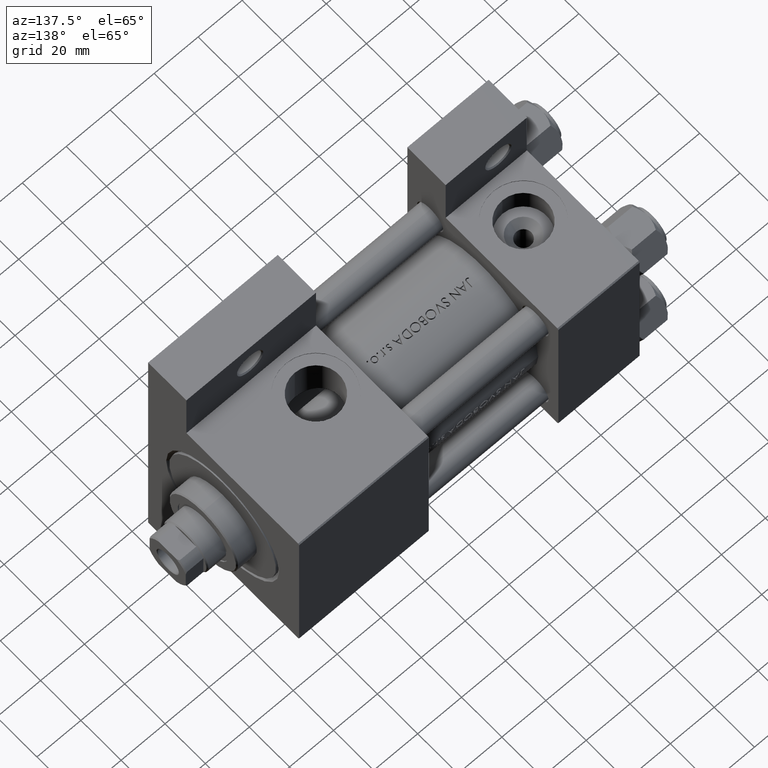
[diagram: clean part render]
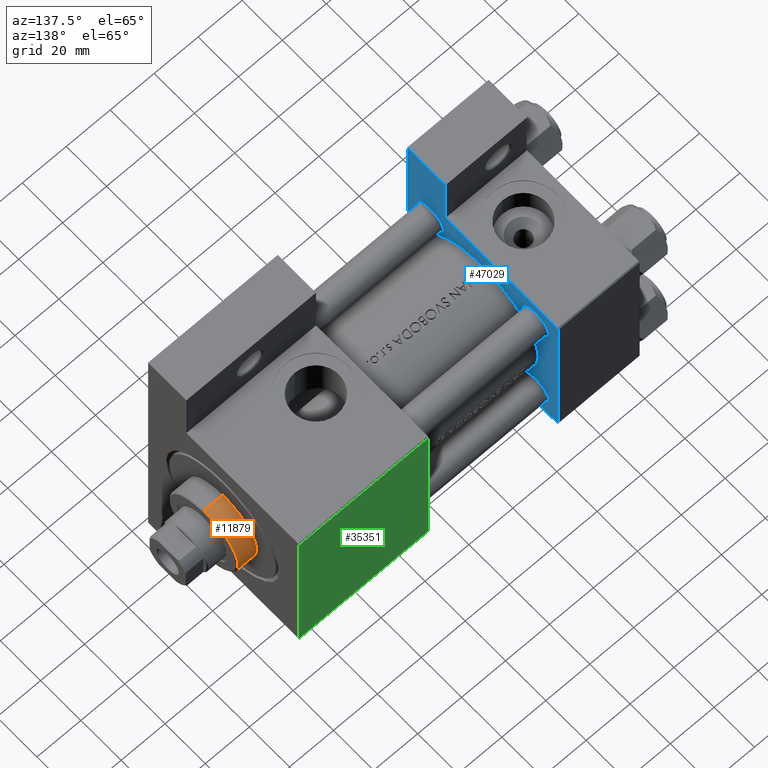
[diagram: same view with three faces highlighted in distinct colors, each labeled with its STEP entity id]
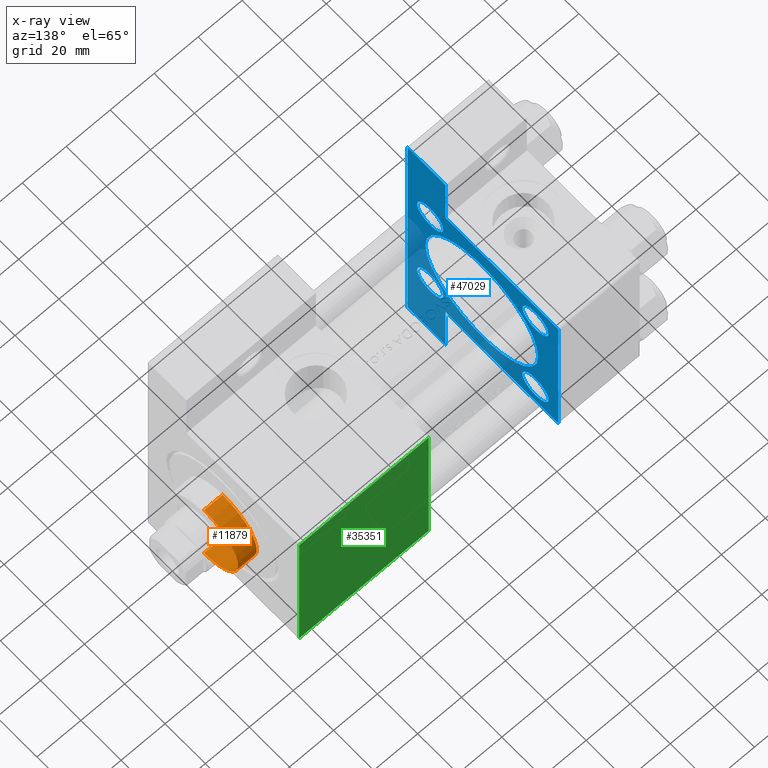
[diagram: x-ray of the same camera — body ghosted, the three highlighted faces saturated]
A machine part, auxiliary view with three faces highlighted in distinct colors.
The next image is the same camera in x-ray (body ghosted, the three faces saturated) — at least one of them is partly hidden behind the body in this view.
Their STEP definitions:

[orange] entity #11879 — the highlighted cylindrical surface (partial cylindrical patch) has radius 17 mm, axis along (-1, -0, 0).
#2770 = DIRECTION ( 'NONE',  ( 1.000000000000000000, 0.000000000000000000, 0.000000000000000000 ) ) ;
#4389 = VERTEX_POINT ( 'NONE', #4595 ) ;
#4595 = CARTESIAN_POINT ( 'NONE',  ( 17.00000000000000000, 2.081899558550500280E-15, 28.69999999999999929 ) ) ;
#5450 = CIRCLE ( 'NONE', #43644, 17.00000000000000000 ) ;
#6272 = DIRECTION ( 'NONE',  ( 0.000000000000000000, 0.000000000000000000, 1.000000000000000000 ) ) ;
#9220 = EDGE_CURVE ( 'NONE', #4389, #26692, #11006, .T. ) ;
#9476 = DIRECTION ( 'NONE',  ( 1.000000000000000000, 0.000000000000000000, 0.000000000000000000 ) ) ;
#10389 = EDGE_CURVE ( 'NONE', #24173, #17211, #5450, .T. ) ;
#11006 = CIRCLE ( 'NONE', #14987, 17.00000000000000000 ) ;
#11879 = ADVANCED_FACE ( 'NONE', ( #13752 ), #25686, .T. ) ;
#12368 = DIRECTION ( 'NONE',  ( -0.000000000000000000, -0.000000000000000000, -1.000000000000000000 ) ) ;
#13752 = FACE_OUTER_BOUND ( 'NONE', #48008, .T. ) ;
#14973 = CARTESIAN_POINT ( 'NONE',  ( 0.000000000000000000, 0.000000000000000000, 28.69999999999999929 ) ) ;
#14987 = AXIS2_PLACEMENT_3D ( 'NONE', #14973, #6272, #2770 ) ;
#15788 = CARTESIAN_POINT ( 'NONE',  ( -17.00000000000000000, 0.000000000000000000, 28.69999999999999929 ) ) ;
#17211 = VERTEX_POINT ( 'NONE', #43966 ) ;
#20065 = LINE ( 'NONE', #46958, #34227 ) ;
#24173 = VERTEX_POINT ( 'NONE', #43969 ) ;
#25053 = DIRECTION ( 'NONE',  ( -0.000000000000000000, -0.000000000000000000, -1.000000000000000000 ) ) ;
#25686 = CYLINDRICAL_SURFACE ( 'NONE', #27920, 17.00000000000000000 ) ;
#26692 = VERTEX_POINT ( 'NONE', #15788 ) ;
#27920 = AXIS2_PLACEMENT_3D ( 'NONE', #28438, #32913, #32421 ) ;
#28273 = ORIENTED_EDGE ( 'NONE', *, *, #9220, .T. ) ;
#28438 = CARTESIAN_POINT ( 'NONE',  ( 0.000000000000000000, 0.000000000000000000, 37.69999999999999574 ) ) ;
#28788 = LINE ( 'NONE', #43985, #39917 ) ;
#32421 = DIRECTION ( 'NONE',  ( -1.000000000000000000, 0.000000000000000000, 0.000000000000000000 ) ) ;
#32623 = DIRECTION ( 'NONE',  ( 0.000000000000000000, 0.000000000000000000, -1.000000000000000000 ) ) ;
#32913 = DIRECTION ( 'NONE',  ( -0.000000000000000000, -0.000000000000000000, -1.000000000000000000 ) ) ;
#33005 = EDGE_CURVE ( 'NONE', #24173, #26692, #20065, .T. ) ;
#34227 = VECTOR ( 'NONE', #12368, 1000.000000000000000 ) ;
#36054 = EDGE_CURVE ( 'NONE', #17211, #4389, #28788, .T. ) ;
#39917 = VECTOR ( 'NONE', #25053, 1000.000000000000000 ) ;
#43590 = CARTESIAN_POINT ( 'NONE',  ( 0.000000000000000000, 0.000000000000000000, 37.19999999999999574 ) ) ;
#43644 = AXIS2_PLACEMENT_3D ( 'NONE', #43590, #32623, #9476 ) ;
#43966 = CARTESIAN_POINT ( 'NONE',  ( 17.00000000000000000, 2.081899558550500280E-15, 37.19999999999999574 ) ) ;
#43969 = CARTESIAN_POINT ( 'NONE',  ( -17.00000000000000000, 0.000000000000000000, 37.19999999999999574 ) ) ;
#43985 = CARTESIAN_POINT ( 'NONE',  ( 17.00000000000000000, 2.081899558550500280E-15, 37.69999999999999574 ) ) ;
#46413 = ORIENTED_EDGE ( 'NONE', *, *, #33005, .F. ) ;
#46525 = ORIENTED_EDGE ( 'NONE', *, *, #36054, .T. ) ;
#46958 = CARTESIAN_POINT ( 'NONE',  ( -17.00000000000000000, 0.000000000000000000, 37.69999999999999574 ) ) ;
#48008 = EDGE_LOOP ( 'NONE', ( #48577, #46525, #28273, #46413 ) ) ;
#48577 = ORIENTED_EDGE ( 'NONE', *, *, #10389, .T. ) ;

[blue] entity #47029 — the highlighted planar face has unit normal (-1, 0, -0).
#259 = CARTESIAN_POINT ( 'NONE',  ( 37.00000000000000000, 26.14999999999999858, -32.64999999999997726 ) ) ;
#282 = VECTOR ( 'NONE', #28642, 1000.000000000000114 ) ;
#425 = DIRECTION ( 'NONE',  ( 0.000000000000000000, 0.000000000000000000, 1.000000000000000000 ) ) ;
#1102 = DIRECTION ( 'NONE',  ( 1.000000000000000000, -0.000000000000000000, 0.000000000000000000 ) ) ;
#1947 = DIRECTION ( 'NONE',  ( -1.000000000000000000, 0.000000000000000000, -0.000000000000000000 ) ) ;
#1950 = ORIENTED_EDGE ( 'NONE', *, *, #42914, .T. ) ;
#2206 = DIRECTION ( 'NONE',  ( 0.000000000000000000, 0.000000000000000000, 1.000000000000000000 ) ) ;
#2978 = EDGE_CURVE ( 'NONE', #42439, #44242, #5356, .T. ) ;
#3491 = VERTEX_POINT ( 'NONE', #7586 ) ;
#3768 = ORIENTED_EDGE ( 'NONE', *, *, #26421, .T. ) ;
#3894 = VERTEX_POINT ( 'NONE', #44531 ) ;
#3914 = DIRECTION ( 'NONE',  ( -1.000000000000000000, 0.000000000000000000, -0.000000000000000000 ) ) ;
#4043 = EDGE_CURVE ( 'NONE', #22329, #3894, #12591, .T. ) ;
#4069 = ORIENTED_EDGE ( 'NONE', *, *, #25712, .T. ) ;
#4791 = CARTESIAN_POINT ( 'NONE',  ( 37.00000000000000000, -37.50000000000000000, -18.50000000000000355 ) ) ;
#4912 = VECTOR ( 'NONE', #24233, 1000.000000000000000 ) ;
#5356 = CIRCLE ( 'NONE', #6177, 6.500000000000002665 ) ;
#5698 = CARTESIAN_POINT ( 'NONE',  ( 37.00000000000000000, -26.14999999999999147, 26.15000000000000924 ) ) ;
#5871 = CARTESIAN_POINT ( 'NONE',  ( 37.00000000000000000, 26.14999999999999858, 19.65000000000002345 ) ) ;
#5913 = CARTESIAN_POINT ( 'NONE',  ( 37.00000000000000000, -26.14999999999999147, -19.65000000000000924 ) ) ;
#6177 = AXIS2_PLACEMENT_3D ( 'NONE', #27384, #1947, #16907 ) ;
#6401 = FACE_BOUND ( 'NONE', #28547, .T. ) ;
#6999 = CARTESIAN_POINT ( 'NONE',  ( 37.00000000000000000, -37.50000000000000711, 37.49999999999999289 ) ) ;
#7511 = VERTEX_POINT ( 'NONE', #35739 ) ;
#7586 = CARTESIAN_POINT ( 'NONE',  ( 37.00000000000000000, 26.14999999999999858, 32.64999999999998437 ) ) ;
#7695 = ORIENTED_EDGE ( 'NONE', *, *, #24674, .F. ) ;
#8140 = DIRECTION ( 'NONE',  ( -1.000000000000000000, 0.000000000000000000, -0.000000000000000000 ) ) ;
#8824 = DIRECTION ( 'NONE',  ( 0.000000000000000000, 0.000000000000000000, 1.000000000000000000 ) ) ;
#9066 = ORIENTED_EDGE ( 'NONE', *, *, #4043, .T. ) ;
#9293 = DIRECTION ( 'NONE',  ( 0.000000000000000000, 0.000000000000000000, 1.000000000000000000 ) ) ;
#9655 = DIRECTION ( 'NONE',  ( 0.000000000000000000, 0.000000000000000000, 1.000000000000000000 ) ) ;
#9660 = FACE_BOUND ( 'NONE', #20747, .T. ) ;
#10833 = ORIENTED_EDGE ( 'NONE', *, *, #13731, .T. ) ;
#12098 = VERTEX_POINT ( 'NONE', #259 ) ;
#12297 = LINE ( 'NONE', #27469, #13422 ) ;
#12591 = CIRCLE ( 'NONE', #37979, 6.500000000000008882 ) ;
#12659 = EDGE_CURVE ( 'NONE', #43417, #21236, #48352, .T. ) ;
#12753 = ORIENTED_EDGE ( 'NONE', *, *, #44104, .F. ) ;
#12817 = CARTESIAN_POINT ( 'NONE',  ( 37.00000000000000000, 37.49999999999999289, 37.00000000000000000 ) ) ;
#13422 = VECTOR ( 'NONE', #31695, 1000.000000000000000 ) ;
#13475 = CARTESIAN_POINT ( 'NONE',  ( 37.00000000000000000, -37.50000000000000711, 36.99999999999999289 ) ) ;
#13485 = CARTESIAN_POINT ( 'NONE',  ( 37.00000000000000000, -63.50000000000000000, -18.50000000000000355 ) ) ;
#13731 = EDGE_CURVE ( 'NONE', #29579, #43417, #48543, .T. ) ;
#13970 = VERTEX_POINT ( 'NONE', #34655 ) ;
#14075 = VERTEX_POINT ( 'NONE', #13485 ) ;
#14259 = DIRECTION ( 'NONE',  ( 0.000000000000000000, 9.251858538542971581E-17, -1.000000000000000000 ) ) ;
#14420 = DIRECTION ( 'NONE',  ( 0.000000000000000000, 0.000000000000000000, 1.000000000000000000 ) ) ;
#15017 = EDGE_LOOP ( 'NONE', ( #15847, #38360 ) ) ;
#15217 = DIRECTION ( 'NONE',  ( -1.000000000000000000, 0.000000000000000000, -0.000000000000000000 ) ) ;
#15231 = VECTOR ( 'NONE', #37575, 1000.000000000000000 ) ;
#15360 = AXIS2_PLACEMENT_3D ( 'NONE', #29111, #48520, #14420 ) ;
#15847 = ORIENTED_EDGE ( 'NONE', *, *, #22581, .T. ) ;
#16787 = CARTESIAN_POINT ( 'NONE',  ( 37.00000000000000000, -63.50000000000000000, -37.49999999999999289 ) ) ;
#16801 = CARTESIAN_POINT ( 'NONE',  ( 37.00000000000000000, 37.49999999999999289, -37.50000000000000000 ) ) ;
#16907 = DIRECTION ( 'NONE',  ( 0.000000000000000000, 0.000000000000000000, 1.000000000000000000 ) ) ;
#17299 = LINE ( 'NONE', #47935, #47791 ) ;
#17791 = ORIENTED_EDGE ( 'NONE', *, *, #43591, .T. ) ;
#17842 = EDGE_LOOP ( 'NONE', ( #47976, #25292 ) ) ;
#17868 = PLANE ( 'NONE',  #44771 ) ;
#18097 = AXIS2_PLACEMENT_3D ( 'NONE', #26418, #15217, #30409 ) ;
#18256 = CIRCLE ( 'NONE', #26183, 6.500000000000008882 ) ;
#18335 = CIRCLE ( 'NONE', #24683, 6.499999999999974243 ) ;
#18427 = AXIS2_PLACEMENT_3D ( 'NONE', #43410, #47882, #9293 ) ;
#19364 = CARTESIAN_POINT ( 'NONE',  ( 37.00000000000000000, -26.14999999999999147, 26.15000000000000924 ) ) ;
#19419 = VERTEX_POINT ( 'NONE', #16787 ) ;
#19827 = DIRECTION ( 'NONE',  ( 0.000000000000000000, 0.000000000000000000, 1.000000000000000000 ) ) ;
#19832 = CARTESIAN_POINT ( 'NONE',  ( 37.00000000000001421, 63.50000000000001421, -18.50000000000000355 ) ) ;
#19991 = CARTESIAN_POINT ( 'NONE',  ( 37.00000000000000000, -26.14999999999999147, 32.65000000000001990 ) ) ;
#20028 = VECTOR ( 'NONE', #31500, 1000.000000000000000 ) ;
#20575 = CIRCLE ( 'NONE', #30131, 6.499999999999974243 ) ;
#20747 = EDGE_LOOP ( 'NONE', ( #4069, #21051 ) ) ;
#21051 = ORIENTED_EDGE ( 'NONE', *, *, #25009, .T. ) ;
#21236 = VERTEX_POINT ( 'NONE', #4791 ) ;
#21348 = DIRECTION ( 'NONE',  ( -0.000000000000000000, 0.000000000000000000, 1.000000000000000000 ) ) ;
#22195 = CARTESIAN_POINT ( 'NONE',  ( 37.00000000000000000, 26.14999999999999858, 26.15000000000000213 ) ) ;
#22329 = VERTEX_POINT ( 'NONE', #19991 ) ;
#22581 = EDGE_CURVE ( 'NONE', #12098, #22949, #39563, .T. ) ;
#22776 = LINE ( 'NONE', #37980, #20028 ) ;
#22813 = LINE ( 'NONE', #19832, #44406 ) ;
#22949 = VERTEX_POINT ( 'NONE', #31519 ) ;
#22975 = EDGE_LOOP ( 'NONE', ( #36360, #9066 ) ) ;
#23013 = ORIENTED_EDGE ( 'NONE', *, *, #45192, .F. ) ;
#23561 = DIRECTION ( 'NONE',  ( 2.668805347656626678E-16, 1.000000000000000000, 0.000000000000000000 ) ) ;
#23705 = VERTEX_POINT ( 'NONE', #41317 ) ;
#24129 = EDGE_CURVE ( 'NONE', #7511, #34719, #22813, .T. ) ;
#24170 = CARTESIAN_POINT ( 'NONE',  ( 37.00000000000000000, -37.50000000000000711, 36.99999999999999289 ) ) ;
#24190 = VERTEX_POINT ( 'NONE', #5871 ) ;
#24233 = DIRECTION ( 'NONE',  ( -0.000000000000000000, 1.000000000000000000, 0.000000000000000000 ) ) ;
#24480 = LINE ( 'NONE', #39675, #4912 ) ;
#24674 = EDGE_CURVE ( 'NONE', #47860, #7511, #12297, .T. ) ;
#24683 = AXIS2_PLACEMENT_3D ( 'NONE', #41991, #8140, #19827 ) ;
#24757 = DIRECTION ( 'NONE',  ( 0.000000000000000000, -1.000000000000000000, -9.251858538542972814E-17 ) ) ;
#24842 = CARTESIAN_POINT ( 'NONE',  ( 37.00000000000000000, 0.000000000000000000, 0.000000000000000000 ) ) ;
#25009 = EDGE_CURVE ( 'NONE', #3491, #24190, #30900, .T. ) ;
#25292 = ORIENTED_EDGE ( 'NONE', *, *, #2978, .T. ) ;
#25694 = CIRCLE ( 'NONE', #31283, 28.00000000000000000 ) ;
#25712 = EDGE_CURVE ( 'NONE', #24190, #3491, #20575, .T. ) ;
#26183 = AXIS2_PLACEMENT_3D ( 'NONE', #5698, #33080, #2206 ) ;
#26278 = ORIENTED_EDGE ( 'NONE', *, *, #12659, .T. ) ;
#26367 = CARTESIAN_POINT ( 'NONE',  ( 37.00000000000000000, -63.49999999999998579, 26.72167621838007889 ) ) ;
#26418 = CARTESIAN_POINT ( 'NONE',  ( 37.00000000000000000, 26.14999999999999858, -26.15000000000000213 ) ) ;
#26421 = EDGE_CURVE ( 'NONE', #13970, #29579, #33481, .T. ) ;
#27024 = VERTEX_POINT ( 'NONE', #30424 ) ;
#27384 = CARTESIAN_POINT ( 'NONE',  ( 37.00000000000000000, -26.14999999999999147, -26.15000000000000924 ) ) ;
#27469 = CARTESIAN_POINT ( 'NONE',  ( 37.00000000000000000, 37.49999999999999289, 37.50000000000000000 ) ) ;
#28547 = EDGE_LOOP ( 'NONE', ( #28990, #34699 ) ) ;
#28573 = CARTESIAN_POINT ( 'NONE',  ( 37.00000000000000000, 26.14999999999999858, 26.15000000000000213 ) ) ;
#28579 = FACE_BOUND ( 'NONE', #17842, .T. ) ;
#28642 = DIRECTION ( 'NONE',  ( -0.000000000000000000, -0.7071067811865474617, -0.7071067811865474617 ) ) ;
#28990 = ORIENTED_EDGE ( 'NONE', *, *, #38129, .F. ) ;
#29111 = CARTESIAN_POINT ( 'NONE',  ( 37.00000000000000000, 0.000000000000000000, -0.5000000000000004441 ) ) ;
#29579 = VERTEX_POINT ( 'NONE', #37936 ) ;
#30131 = AXIS2_PLACEMENT_3D ( 'NONE', #22195, #45606, #34147 ) ;
#30409 = DIRECTION ( 'NONE',  ( 0.000000000000000000, 0.000000000000000000, 1.000000000000000000 ) ) ;
#30424 = CARTESIAN_POINT ( 'NONE',  ( 37.00000000000000000, 0.000000000000000000, 27.50000000000000000 ) ) ;
#30460 = ORIENTED_EDGE ( 'NONE', *, *, #40542, .F. ) ;
#30640 = EDGE_CURVE ( 'NONE', #3894, #22329, #18256, .T. ) ;
#30900 = CIRCLE ( 'NONE', #37244, 6.499999999999974243 ) ;
#31234 = VECTOR ( 'NONE', #24757, 1000.000000000000000 ) ;
#31283 = AXIS2_PLACEMENT_3D ( 'NONE', #35219, #1102, #8824 ) ;
#31500 = DIRECTION ( 'NONE',  ( 0.000000000000000000, -1.734723475976806848E-16, -1.000000000000000000 ) ) ;
#31519 = CARTESIAN_POINT ( 'NONE',  ( 37.00000000000000000, 26.14999999999999858, -19.65000000000002700 ) ) ;
#31695 = DIRECTION ( 'NONE',  ( 0.000000000000000000, 0.000000000000000000, -1.000000000000000000 ) ) ;
#31986 = LINE ( 'NONE', #16801, #31234 ) ;
#32311 = FACE_OUTER_BOUND ( 'NONE', #40314, .T. ) ;
#32755 = CARTESIAN_POINT ( 'NONE',  ( 37.00000000000000000, 37.49999999999999289, 37.50000000000000000 ) ) ;
#33050 = DIRECTION ( 'NONE',  ( -1.000000000000000000, 0.000000000000000000, -0.000000000000000000 ) ) ;
#33080 = DIRECTION ( 'NONE',  ( -1.000000000000000000, 0.000000000000000000, -0.000000000000000000 ) ) ;
#33481 = LINE ( 'NONE', #32755, #42761 ) ;
#33554 = EDGE_CURVE ( 'NONE', #22949, #12098, #18335, .T. ) ;
#34147 = DIRECTION ( 'NONE',  ( 0.000000000000000000, 0.000000000000000000, 1.000000000000000000 ) ) ;
#34655 = CARTESIAN_POINT ( 'NONE',  ( 37.00000000000000000, 36.99999999999999289, 37.50000000000000000 ) ) ;
#34699 = ORIENTED_EDGE ( 'NONE', *, *, #39588, .F. ) ;
#34719 = VERTEX_POINT ( 'NONE', #37226 ) ;
#35219 = CARTESIAN_POINT ( 'NONE',  ( 37.00000000000000000, 0.000000000000000000, -0.5000000000000004441 ) ) ;
#35739 = CARTESIAN_POINT ( 'NONE',  ( 37.00000000000000711, 37.50000000000000711, -18.50000000000000355 ) ) ;
#35987 = DIRECTION ( 'NONE',  ( 0.000000000000000000, -0.7071067811865474617, 0.7071067811865474617 ) ) ;
#36293 = FACE_BOUND ( 'NONE', #22975, .T. ) ;
#36360 = ORIENTED_EDGE ( 'NONE', *, *, #30640, .T. ) ;
#37021 = DIRECTION ( 'NONE',  ( -1.000000000000000000, 0.000000000000000000, -0.000000000000000000 ) ) ;
#37226 = CARTESIAN_POINT ( 'NONE',  ( 37.00000000000001421, 63.50000000000000000, -18.50000000000000355 ) ) ;
#37244 = AXIS2_PLACEMENT_3D ( 'NONE', #28573, #37021, #9655 ) ;
#37575 = DIRECTION ( 'NONE',  ( 0.000000000000000000, -1.734723475976806848E-16, -1.000000000000000000 ) ) ;
#37881 = CARTESIAN_POINT ( 'NONE',  ( 37.00000000000000000, -26.14999999999999147, -32.65000000000001279 ) ) ;
#37936 = CARTESIAN_POINT ( 'NONE',  ( 37.00000000000000000, -37.00000000000000711, 37.49999999999999289 ) ) ;
#37946 = CARTESIAN_POINT ( 'NONE',  ( 37.00000000000001421, 63.50000000000000000, -37.50000000000002132 ) ) ;
#37979 = AXIS2_PLACEMENT_3D ( 'NONE', #19364, #3914, #425 ) ;
#37980 = CARTESIAN_POINT ( 'NONE',  ( 37.00000000000001421, 63.50000000000001421, 26.72167621838005047 ) ) ;
#38129 = EDGE_CURVE ( 'NONE', #27024, #23705, #42364, .T. ) ;
#38360 = ORIENTED_EDGE ( 'NONE', *, *, #33554, .T. ) ;
#39563 = CIRCLE ( 'NONE', #18097, 6.499999999999974243 ) ;
#39588 = EDGE_CURVE ( 'NONE', #23705, #27024, #25694, .T. ) ;
#39675 = CARTESIAN_POINT ( 'NONE',  ( 37.00000000000000000, -63.49999999999998579, -18.50000000000000355 ) ) ;
#39907 = CIRCLE ( 'NONE', #18427, 6.500000000000002665 ) ;
#40314 = EDGE_LOOP ( 'NONE', ( #3768, #10833, #26278, #12753, #17791, #23013, #30460, #42780, #7695, #1950 ) ) ;
#40542 = EDGE_CURVE ( 'NONE', #34719, #47397, #22776, .T. ) ;
#41317 = CARTESIAN_POINT ( 'NONE',  ( 37.00000000000000000, 3.429011037612589276E-15, -28.50000000000000000 ) ) ;
#41991 = CARTESIAN_POINT ( 'NONE',  ( 37.00000000000000000, 26.14999999999999858, -26.15000000000000213 ) ) ;
#42364 = CIRCLE ( 'NONE', #15360, 28.00000000000000000 ) ;
#42439 = VERTEX_POINT ( 'NONE', #5913 ) ;
#42761 = VECTOR ( 'NONE', #43716, 1000.000000000000000 ) ;
#42780 = ORIENTED_EDGE ( 'NONE', *, *, #24129, .F. ) ;
#42914 = EDGE_CURVE ( 'NONE', #47860, #13970, #17299, .T. ) ;
#43273 = VECTOR ( 'NONE', #14259, 1000.000000000000000 ) ;
#43410 = CARTESIAN_POINT ( 'NONE',  ( 37.00000000000000000, -26.14999999999999147, -26.15000000000000924 ) ) ;
#43417 = VERTEX_POINT ( 'NONE', #24170 ) ;
#43591 = EDGE_CURVE ( 'NONE', #14075, #19419, #49017, .T. ) ;
#43716 = DIRECTION ( 'NONE',  ( 0.000000000000000000, -1.000000000000000000, -9.251858538542971581E-17 ) ) ;
#43768 = FACE_BOUND ( 'NONE', #15017, .T. ) ;
#44087 = EDGE_CURVE ( 'NONE', #44242, #42439, #39907, .T. ) ;
#44104 = EDGE_CURVE ( 'NONE', #14075, #21236, #24480, .T. ) ;
#44242 = VERTEX_POINT ( 'NONE', #37881 ) ;
#44406 = VECTOR ( 'NONE', #23561, 1000.000000000000000 ) ;
#44531 = CARTESIAN_POINT ( 'NONE',  ( 37.00000000000000000, -26.14999999999999147, 19.65000000000000213 ) ) ;
#44771 = AXIS2_PLACEMENT_3D ( 'NONE', #24842, #33050, #21348 ) ;
#45192 = EDGE_CURVE ( 'NONE', #47397, #19419, #31986, .T. ) ;
#45606 = DIRECTION ( 'NONE',  ( -1.000000000000000000, 0.000000000000000000, -0.000000000000000000 ) ) ;
#47029 = ADVANCED_FACE ( 'NONE', ( #28579, #43768, #36293, #9660, #6401, #32311 ), #17868, .F. ) ;
#47397 = VERTEX_POINT ( 'NONE', #37946 ) ;
#47791 = VECTOR ( 'NONE', #35987, 1000.000000000000114 ) ;
#47860 = VERTEX_POINT ( 'NONE', #12817 ) ;
#47882 = DIRECTION ( 'NONE',  ( -1.000000000000000000, 0.000000000000000000, -0.000000000000000000 ) ) ;
#47935 = CARTESIAN_POINT ( 'NONE',  ( 37.00000000000000000, 36.99999999999999289, 37.50000000000000000 ) ) ;
#47976 = ORIENTED_EDGE ( 'NONE', *, *, #44087, .T. ) ;
#48352 = LINE ( 'NONE', #6999, #43273 ) ;
#48520 = DIRECTION ( 'NONE',  ( 1.000000000000000000, -0.000000000000000000, 0.000000000000000000 ) ) ;
#48543 = LINE ( 'NONE', #13475, #282 ) ;
#49017 = LINE ( 'NONE', #26367, #15231 ) ;

[green] entity #35351 — the highlighted planar face has unit normal (0, -1, -0).
#3972 = ORIENTED_EDGE ( 'NONE', *, *, #36042, .T. ) ;
#5038 = VERTEX_POINT ( 'NONE', #45221 ) ;
#6232 = LINE ( 'NONE', #24909, #40065 ) ;
#6886 = VERTEX_POINT ( 'NONE', #46319 ) ;
#7149 = ORIENTED_EDGE ( 'NONE', *, *, #25637, .T. ) ;
#8083 = LINE ( 'NONE', #26502, #28563 ) ;
#8186 = CARTESIAN_POINT ( 'NONE',  ( 155.0000000000000000, 37.00000000000000000, 37.49999999999999289 ) ) ;
#8877 = EDGE_LOOP ( 'NONE', ( #10441, #3972, #7149, #18855 ) ) ;
#8887 = LINE ( 'NONE', #36258, #27191 ) ;
#9538 = LINE ( 'NONE', #13770, #23771 ) ;
#10441 = ORIENTED_EDGE ( 'NONE', *, *, #11094, .F. ) ;
#10709 = DIRECTION ( 'NONE',  ( 0.000000000000000000, 1.850371707708594316E-16, -1.000000000000000000 ) ) ;
#11094 = EDGE_CURVE ( 'NONE', #24750, #5038, #8083, .T. ) ;
#11188 = VERTEX_POINT ( 'NONE', #43416 ) ;
#13616 = EDGE_CURVE ( 'NONE', #6886, #5038, #6232, .T. ) ;
#13770 = CARTESIAN_POINT ( 'NONE',  ( 96.00000000000000000, 37.50000000000000000, 37.49999999999999289 ) ) ;
#17438 = DIRECTION ( 'NONE',  ( 1.000000000000000000, 0.000000000000000000, 0.000000000000000000 ) ) ;
#17627 = AXIS2_PLACEMENT_3D ( 'NONE', #48072, #10709, #28898 ) ;
#18855 = ORIENTED_EDGE ( 'NONE', *, *, #13616, .T. ) ;
#19037 = DIRECTION ( 'NONE',  ( 0.000000000000000000, -1.000000000000000000, -1.850371707708594316E-16 ) ) ;
#23771 = VECTOR ( 'NONE', #36417, 1000.000000000000000 ) ;
#24750 = VERTEX_POINT ( 'NONE', #8186 ) ;
#24909 = CARTESIAN_POINT ( 'NONE',  ( 155.0000000000000000, -37.00000000000000000, 37.49999999999997868 ) ) ;
#25637 = EDGE_CURVE ( 'NONE', #11188, #6886, #9538, .T. ) ;
#26502 = CARTESIAN_POINT ( 'NONE',  ( 155.0000000000000000, 37.50000000000000000, 37.49999999999999289 ) ) ;
#27191 = VECTOR ( 'NONE', #32530, 1000.000000000000000 ) ;
#28563 = VECTOR ( 'NONE', #19037, 1000.000000000000000 ) ;
#28898 = DIRECTION ( 'NONE',  ( 0.000000000000000000, 1.000000000000000000, 1.850371707708594316E-16 ) ) ;
#32530 = DIRECTION ( 'NONE',  ( -1.000000000000000000, 0.000000000000000000, 0.000000000000000000 ) ) ;
#35351 = ADVANCED_FACE ( 'NONE', ( #40840 ), #43842, .F. ) ;
#36042 = EDGE_CURVE ( 'NONE', #24750, #11188, #8887, .T. ) ;
#36258 = CARTESIAN_POINT ( 'NONE',  ( 96.00000000000000000, 37.00000000000000000, 37.49999999999999289 ) ) ;
#36417 = DIRECTION ( 'NONE',  ( 0.000000000000000000, -1.000000000000000000, -1.850371707708594316E-16 ) ) ;
#40065 = VECTOR ( 'NONE', #17438, 1000.000000000000000 ) ;
#40840 = FACE_OUTER_BOUND ( 'NONE', #8877, .T. ) ;
#43416 = CARTESIAN_POINT ( 'NONE',  ( 96.00000000000000000, 37.00000000000000000, 37.49999999999999289 ) ) ;
#43842 = PLANE ( 'NONE',  #17627 ) ;
#45221 = CARTESIAN_POINT ( 'NONE',  ( 155.0000000000000000, -37.00000000000000000, 37.49999999999997868 ) ) ;
#46319 = CARTESIAN_POINT ( 'NONE',  ( 96.00000000000000000, -37.00000000000000000, 37.49999999999997868 ) ) ;
#48072 = CARTESIAN_POINT ( 'NONE',  ( 155.0000000000000000, 37.50000000000000000, 37.49999999999999289 ) ) ;